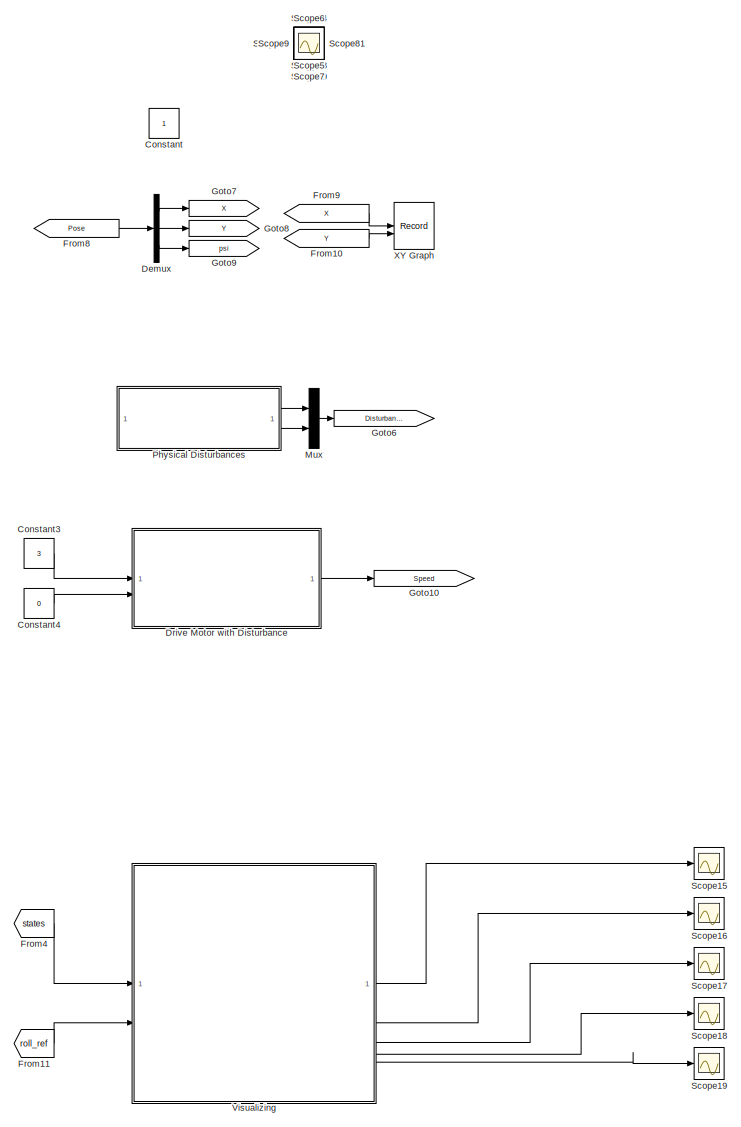
[diagram: root canvas - part 1/5, right side, full height]
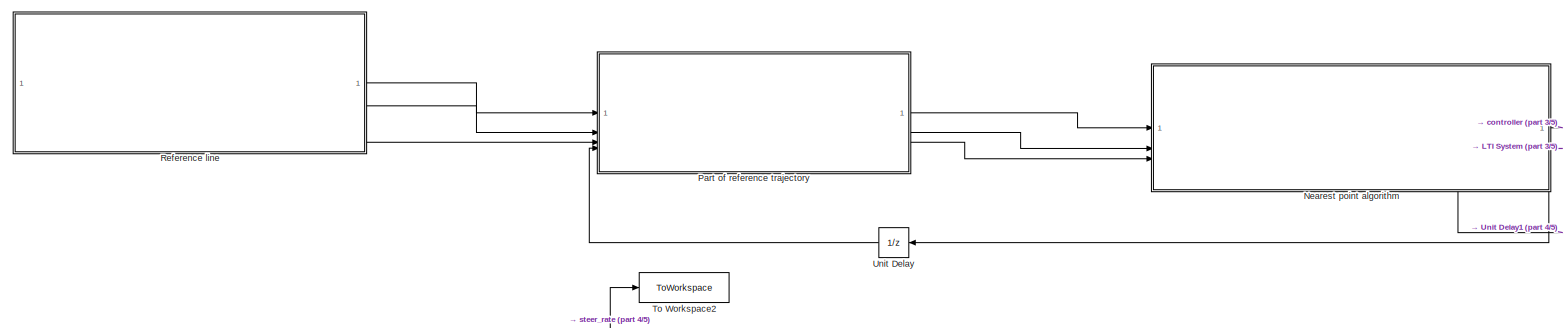
[diagram: root canvas - part 2/5, middle left region]
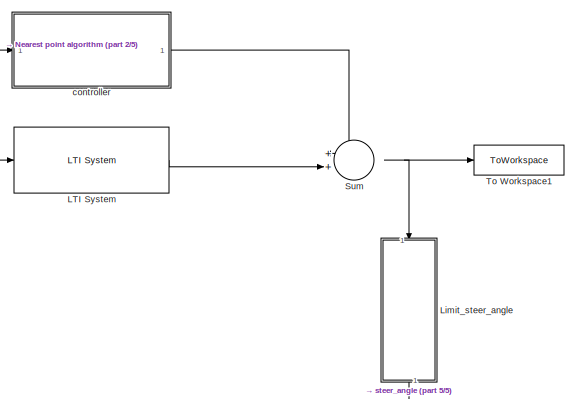
[diagram: root canvas - part 3/5, central region]
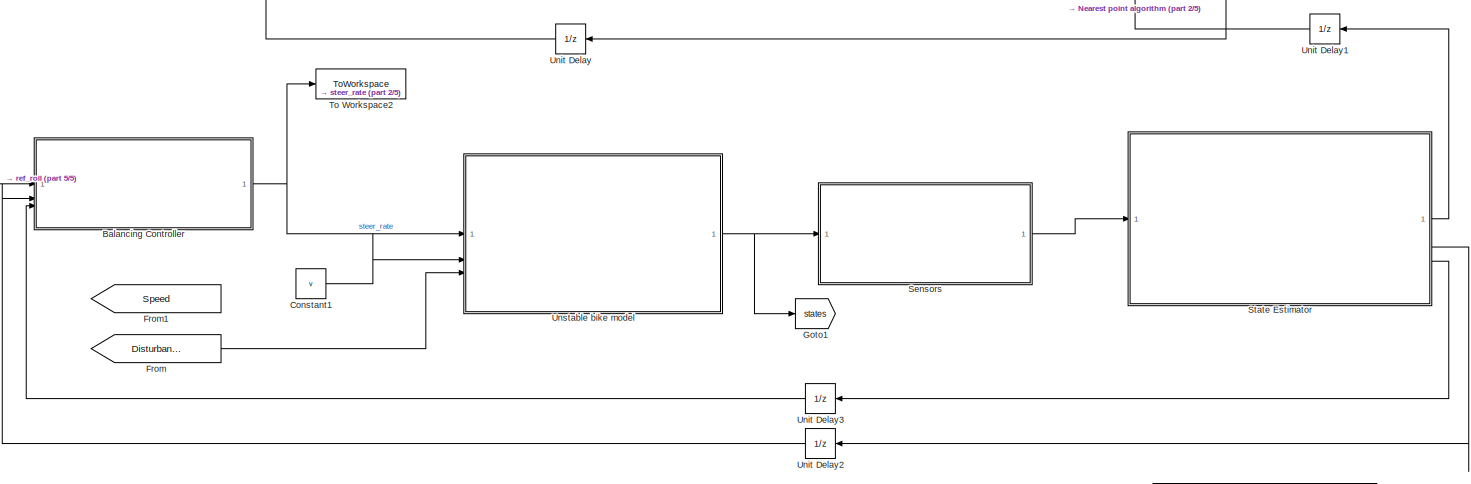
[diagram: root canvas - part 4/5, bottom center region]
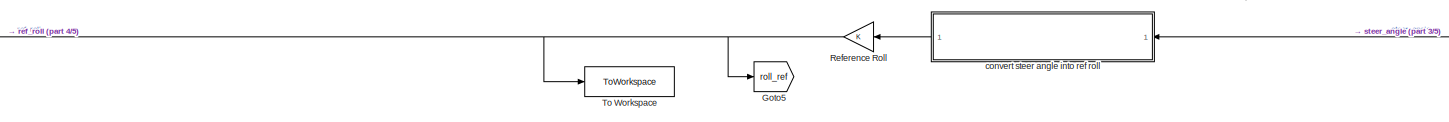
[diagram: root canvas - part 5/5, bottom center region]
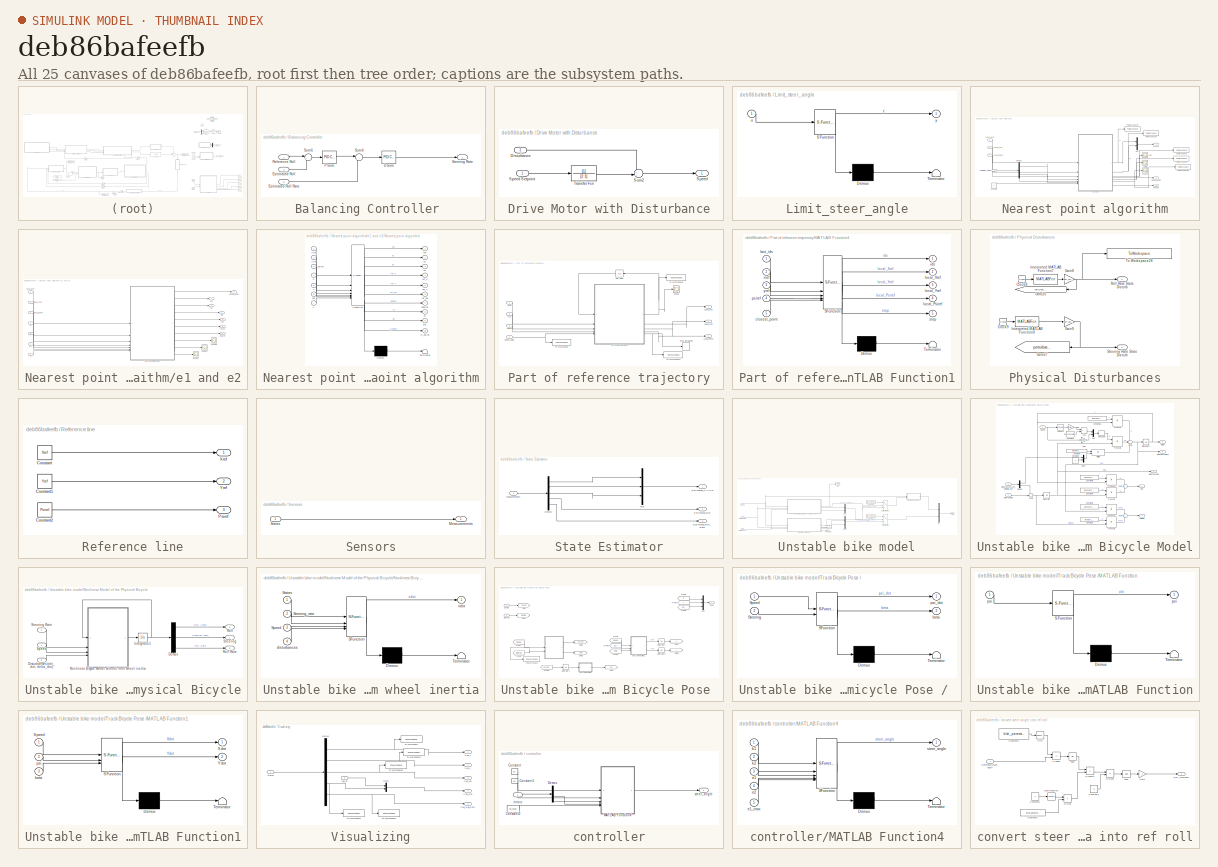
[diagram: thumbnail index - all 25 canvases of the model, root first then tree order]
MODEL slx_deb86bafeefb
KIND model
CONFIG AbsTol = auto
CONFIG EnableMultiTasking = off
CONFIG FixedStep = auto
CONFIG MaxStep = auto
CONFIG MinStep = auto
CONFIG RelTol = 1e-3
CONFIG SampleTimeConstraint = Unconstrained
CONFIG SolverName = VariableStepAuto
CONFIG StartTime = 0.0
CONFIG StopTime = sim_time-0.02
BLOCK [SubSystem] Balancing Controller 
  MinAlgLoopOccurrences = on
  SystemSampleTime = Ts
  TreatAsAtomicUnit = on
BLOCK [Reference] Balancing Controller /D term  REF=slpidlib/PID Controller
  SourceBlock = slpidlib/PID Controller
  SourceType = PID 1dof
BLOCK [Inport] Balancing Controller /Estimated Roll
  Port = 2
BLOCK [Inport] Balancing Controller /Estimated Roll Rate
  Port = 3
BLOCK [Reference] Balancing Controller /P term  REF=slpidlib/PID Controller
  SourceBlock = slpidlib/PID Controller
  SourceType = PID 1dof
BLOCK [Inport] Balancing Controller /Reference Roll
BLOCK [Outport] Balancing Controller /Steering Rate
BLOCK [Sum] Balancing Controller /Sum4
  Inputs = |+-
BLOCK [Sum] Balancing Controller /Sum6
  Inputs = |+-
BLOCK [Constant] Constant
  IOType = siggen
BLOCK [Constant] Constant1
  Value = v
BLOCK [Constant] Constant3
  Value = 3
BLOCK [Constant] Constant4
  Value = 0
BLOCK [Demux] Demux
  Commented = on
  Outputs = 3
BLOCK [SubSystem] Drive Motor with Disturbance
BLOCK [Inport] Drive Motor with Disturbance/Disturbance
  Port = 2
BLOCK [Outport] Drive Motor with Disturbance/Speed
BLOCK [Inport] Drive Motor with Disturbance/Speed Setpoint
BLOCK [Sum] Drive Motor with Disturbance/Sum2
  Inputs = ++|
BLOCK [TransferFcn] Drive Motor with Disturbance/Transfer Fcn
  Denominator = [2 1]
BLOCK [From] From
  GotoTag = Disturbances
BLOCK [From] From1
  Commented = on
  GotoTag = Speed
  TagVisibility = global
BLOCK [From] From10
  Commented = on
  GotoTag = Y
BLOCK [From] From11
  GotoTag = roll_ref
BLOCK [From] From4
  GotoTag = states
BLOCK [From] From8
  Commented = on
  GotoTag = Pose
BLOCK [From] From9
  Commented = on
  GotoTag = X
BLOCK [Goto] Goto1
  GotoTag = states
BLOCK [Goto] Goto10
  GotoTag = Speed
  TagVisibility = global
BLOCK [Goto] Goto5
  GotoTag = roll_ref
BLOCK [Goto] Goto6
  GotoTag = Disturbances
BLOCK [Goto] Goto7
  Commented = on
  GotoTag = X
BLOCK [Goto] Goto8
  Commented = on
  GotoTag = Y
BLOCK [Goto] Goto9
  Commented = on
  GotoTag = psi
BLOCK [Reference] LTI System  REF=cstblocks/LTI System
  SourceBlock = cstblocks/LTI System
  SourceType = LTI Block
BLOCK [SubSystem] Limit_steer_angle
  ErrorFcn = Stateflow.Translate.translate
  NameLocation = left
  PermitHierarchicalResolution = ExplicitOnly
  SFBlockType = MATLAB Function
  TreatAsAtomicUnit = on
BLOCK [Demux] Limit_steer_angle/ Demux 
  Outputs = 1
BLOCK [S-Function] Limit_steer_angle/ SFunction 
  EnableBusSupport = on
  FunctionName = sf_sfun
  PortCounts = [1 2]
  SFcnIsStateOwnerBlock = off
  SFunctionDeploymentMode = off
  Tag = Stateflow S-Function 8
BLOCK [Terminator] Limit_steer_angle/ Terminator 
BLOCK [Inport] Limit_steer_angle/u
BLOCK [Outport] Limit_steer_angle/y
BLOCK [Mux] Mux
  DisplayOption = bar
  Inputs = 2
BLOCK [SubSystem] Nearest point algorithm
  PortSchema = {"entries":[{"content":{"sides":[{"content":{"connectorIds":["In1","In2","In3"]},"type":"ConnectorPlacement.EquallySpacedRectSide","uuid":"cc846df4-97c1-4e38-a551-63d96742d514"},{"content":{"connectorIds":["Out1","Out2"],"side":"RIGHT"},"type":"ConnectorPlacement.EquallySpacedRectSide","uuid":"926eeee4-c51a-40d9-a9a1-df7a0c76cd55"},{"content":{"connectorIds":[],"side":"TOP"},"type":"ConnectorPlace...<+415ch>
BLOCK [Constant] Nearest point algorithm/Constant
  Value = v
BLOCK [Demux] Nearest point algorithm/Demux1
  Outputs = 3
BLOCK [Inport] Nearest point algorithm/Estimated_states
  Port = 4
BLOCK [Inport] Nearest point algorithm/Local_Psiref
  Port = 3
BLOCK [Inport] Nearest point algorithm/Local_Xref
BLOCK [Inport] Nearest point algorithm/Local_Yref
  Port = 2
BLOCK [Mux] Nearest point algorithm/Mux
  DisplayOption = bar
  Inputs = 2
BLOCK [ToWorkspace] Nearest point algorithm/To Workspace
  FixptAsFi = on
  MaxDataPoints = inf
  SampleTime = -1
  SaveFormat = Timeseries
  VariableName = refX
BLOCK [ToWorkspace] Nearest point algorithm/To Workspace1
  FixptAsFi = on
  MaxDataPoints = inf
  SampleTime = -1
  SaveFormat = Timeseries
  VariableName = refY
BLOCK [ToWorkspace] Nearest point algorithm/To Workspace2
  FixptAsFi = on
  MaxDataPoints = inf
  SampleTime = -1
  SaveFormat = Timeseries
  VariableName = refPsi
BLOCK [ToWorkspace] Nearest point algorithm/To Workspace3
  FixptAsFi = on
  MaxDataPoints = inf
  SampleTime = -1
  SaveFormat = Timeseries
  VariableName = error1
BLOCK [ToWorkspace] Nearest point algorithm/To Workspace4
  FixptAsFi = on
  MaxDataPoints = inf
  SampleTime = -1
  SaveFormat = Timeseries
  VariableName = error2
BLOCK [Outport] Nearest point algorithm/closest_point
  Port = 3
BLOCK [Outport] Nearest point algorithm/dPsiref
  Port = 2
BLOCK [SubSystem] Nearest point algorithm/e1 and e2
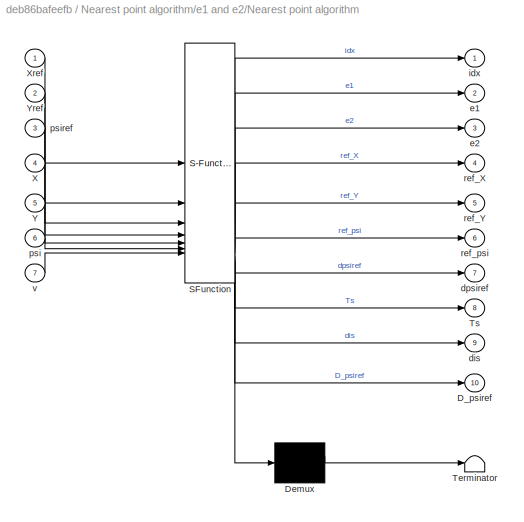
BLOCK [SubSystem] Nearest point algorithm/e1 and e2/Nearest point algorithm
  ErrorFcn = Stateflow.Translate.translate
  PermitHierarchicalResolution = ExplicitOnly
  SFBlockType = MATLAB Function
  TreatAsAtomicUnit = on
BLOCK [Demux] Nearest point algorithm/e1 and e2/Nearest point algorithm/ Demux 
  Outputs = 1
BLOCK [S-Function] Nearest point algorithm/e1 and e2/Nearest point algorithm/ SFunction 
  EnableBusSupport = on
  FunctionName = sf_sfun
  PortCounts = [7 11]
  SFcnIsStateOwnerBlock = off
  SFunctionDeploymentMode = off
  Tag = Stateflow S-Function 6
BLOCK [Terminator] Nearest point algorithm/e1 and e2/Nearest point algorithm/ Terminator 
BLOCK [Outport] Nearest point algorithm/e1 and e2/Nearest point algorithm/D_psiref
  Port = 10
BLOCK [Outport] Nearest point algorithm/e1 and e2/Nearest point algorithm/Ts
  Port = 8
BLOCK [Inport] Nearest point algorithm/e1 and e2/Nearest point algorithm/X
  Port = 4
BLOCK [Inport] Nearest point algorithm/e1 and e2/Nearest point algorithm/Xref
BLOCK [Inport] Nearest point algorithm/e1 and e2/Nearest point algorithm/Y
  Port = 5
BLOCK [Inport] Nearest point algorithm/e1 and e2/Nearest point algorithm/Yref
  Port = 2
BLOCK [Outport] Nearest point algorithm/e1 and e2/Nearest point algorithm/dis
  Port = 9
BLOCK [Outport] Nearest point algorithm/e1 and e2/Nearest point algorithm/dpsiref
  Port = 7
BLOCK [Outport] Nearest point algorithm/e1 and e2/Nearest point algorithm/e1
  Port = 2
BLOCK [Outport] Nearest point algorithm/e1 and e2/Nearest point algorithm/e2
  Port = 3
BLOCK [Outport] Nearest point algorithm/e1 and e2/Nearest point algorithm/idx
BLOCK [Inport] Nearest point algorithm/e1 and e2/Nearest point algorithm/psi
  Port = 6
BLOCK [Inport] Nearest point algorithm/e1 and e2/Nearest point algorithm/psiref
  Port = 3
BLOCK [Outport] Nearest point algorithm/e1 and e2/Nearest point algorithm/ref_X
  Port = 4
BLOCK [Outport] Nearest point algorithm/e1 and e2/Nearest point algorithm/ref_Y
  Port = 5
BLOCK [Outport] Nearest point algorithm/e1 and e2/Nearest point algorithm/ref_psi
  Port = 6
BLOCK [Inport] Nearest point algorithm/e1 and e2/Nearest point algorithm/v
  Port = 7
BLOCK [Scope] Nearest point algorithm/e1 and e2/Scope1
  Floating = off
  NumInputPorts = 1
  ScopeSpecificationString = Simulink.scopes.TimeScopeBlockCfg('CurrentConfiguration', extmgr.ConfigurationSet(extmgr.Configuration('Core','General UI',true),extmgr.Configuration('Core','Source UI',true),extmgr.Configuration('Sources','WiredSimulink',true,'DataLoggingVariableName','ScopeData5'),extmgr.Configuration('Visuals','Time Domain',true,'SerializedDisplays',{struct('MinYLimReal','4.49578243636452','MaxYLimReal','4.4957...<+1526ch>
BLOCK [Scope] Nearest point algorithm/e1 and e2/Scope2
  Floating = off
  NumInputPorts = 1
  ScopeSpecificationString = Simulink.scopes.TimeScopeBlockCfg('CurrentConfiguration', extmgr.ConfigurationSet(extmgr.Configuration('Core','General UI',true),extmgr.Configuration('Core','Source UI',true),extmgr.Configuration('Sources','WiredSimulink',true,'DataLoggingVariableName','ScopeData6'),extmgr.Configuration('Visuals','Time Domain',true,'SerializedDisplays',{struct('MinYLimReal','0.1499999999999984','MaxYLimReal','0.15...<+1543ch>
BLOCK [Scope] Nearest point algorithm/e1 and e2/Scope6
  Floating = off
  NumInputPorts = 1
  ScopeSpecificationString = Simulink.scopes.TimeScopeBlockCfg('CurrentConfiguration', extmgr.ConfigurationSet(extmgr.Configuration('Core','General UI',true),extmgr.Configuration('Core','Source UI',true),extmgr.Configuration('Sources','WiredSimulink',true,'DataLoggingVariableName','ScopeData4'),extmgr.Configuration('Visuals','Time Domain',true,'SerializedDisplays',{struct('MinYLimReal','1.49859414545484','MaxYLimReal','1.4985...<+1525ch>
BLOCK [Inport] Nearest point algorithm/e1 and e2/X
  Port = 4
BLOCK [Inport] Nearest point algorithm/e1 and e2/Y
  Port = 5
BLOCK [Outport] Nearest point algorithm/e1 and e2/closest_point
  Port = 6
BLOCK [Outport] Nearest point algorithm/e1 and e2/dpsiref
  Port = 7
BLOCK [Outport] Nearest point algorithm/e1 and e2/e1
BLOCK [Outport] Nearest point algorithm/e1 and e2/e2
  Port = 2
BLOCK [Inport] Nearest point algorithm/e1 and e2/local_Xref
BLOCK [Inport] Nearest point algorithm/e1 and e2/local_Yref
  Port = 2
BLOCK [Inport] Nearest point algorithm/e1 and e2/local_psiref
  Port = 3
BLOCK [Inport] Nearest point algorithm/e1 and e2/psi
  Port = 6
BLOCK [Outport] Nearest point algorithm/e1 and e2/refX
  Port = 3
BLOCK [Outport] Nearest point algorithm/e1 and e2/refY
  Port = 4
BLOCK [Outport] Nearest point algorithm/e1 and e2/ref_psi
  Port = 5
BLOCK [Inport] Nearest point algorithm/e1 and e2/v
  Port = 7
BLOCK [Outport] Nearest point algorithm/errors
BLOCK [Scope] Nearest point algorithm/refX
  Floating = off
  NumInputPorts = 1
  ScopeSpecificationString = Simulink.scopes.TimeScopeBlockCfg('CurrentConfiguration', extmgr.ConfigurationSet(extmgr.Configuration('Core','General UI',true),extmgr.Configuration('Core','Source UI',true),extmgr.Configuration('Sources','WiredSimulink',true,'DataLoggingVariableName','ScopeData1'),extmgr.Configuration('Visuals','Time Domain',true,'SerializedDisplays',{struct('MinYLimReal','-18.2525','MaxYLimReal','164.2725','YLa...<+1403ch>
BLOCK [Scope] Nearest point algorithm/refY
  Floating = off
  NumInputPorts = 1
  ScopeSpecificationString = Simulink.scopes.TimeScopeBlockCfg('CurrentConfiguration', extmgr.ConfigurationSet(extmgr.Configuration('Core','General UI',true),extmgr.Configuration('Core','Source UI',true),extmgr.Configuration('Sources','WiredSimulink',true,'DataLoggingVariableName','ScopeData2'),extmgr.Configuration('Visuals','Time Domain',true),extmgr.Configuration('Tools','Plot Navigation',true),extmgr.Configuration('Tools',...<+40ch>
BLOCK [Scope] Nearest point algorithm/ref_psi
  Floating = off
  NumInputPorts = 1
  ScopeSpecificationString = Simulink.scopes.TimeScopeBlockCfg('CurrentConfiguration', extmgr.ConfigurationSet(extmgr.Configuration('Core','General UI',true),extmgr.Configuration('Core','Source UI',true),extmgr.Configuration('Sources','WiredSimulink',true,'DataLoggingVariableName','ScopeData3'),extmgr.Configuration('Visuals','Time Domain',true,'SerializedDisplays',{struct('MinYLimReal','-3.89452','MaxYLimReal','3.80863','YLab...<+1405ch>
BLOCK [SubSystem] Part of reference trajectory
BLOCK [Outport] Part of reference trajectory/Local_Psiref
  Port = 3
BLOCK [Outport] Part of reference trajectory/Local_Xref
BLOCK [Outport] Part of reference trajectory/Local_Yref
  Port = 2
BLOCK [SubSystem] Part of reference trajectory/MATLAB Function1
  ErrorFcn = Stateflow.Translate.translate
  PermitHierarchicalResolution = ExplicitOnly
  SFBlockType = MATLAB Function
  TreatAsAtomicUnit = on
BLOCK [Demux] Part of reference trajectory/MATLAB Function1/ Demux 
  Outputs = 1
BLOCK [S-Function] Part of reference trajectory/MATLAB Function1/ SFunction 
  EnableBusSupport = on
  FunctionName = sf_sfun
  Parameters = Th,Ts,v
  PortCounts = [5 6]
  SFcnIsStateOwnerBlock = off
  SFunctionDeploymentMode = off
  Tag = Stateflow S-Function 7
BLOCK [Terminator] Part of reference trajectory/MATLAB Function1/ Terminator 
BLOCK [Inport] Part of reference trajectory/MATLAB Function1/closest_point
  Port = 5
BLOCK [Outport] Part of reference trajectory/MATLAB Function1/ids
BLOCK [Inport] Part of reference trajectory/MATLAB Function1/last_ids
BLOCK [Outport] Part of reference trajectory/MATLAB Function1/local_Psiref
  Port = 4
BLOCK [Outport] Part of reference trajectory/MATLAB Function1/local_Xref
  Port = 2
BLOCK [Outport] Part of reference trajectory/MATLAB Function1/local_Yref
  Port = 3
BLOCK [Inport] Part of reference trajectory/MATLAB Function1/psiref
  Port = 4
BLOCK [Outport] Part of reference trajectory/MATLAB Function1/stop
  Port = 5
BLOCK [Inport] Part of reference trajectory/MATLAB Function1/xref
  Port = 2
BLOCK [Inport] Part of reference trajectory/MATLAB Function1/yref
  Port = 3
BLOCK [Inport] Part of reference trajectory/Psiref
  Port = 3
BLOCK [Scope] Part of reference trajectory/Scope
  Floating = off
  NumInputPorts = 1
  ScopeSpecificationString = Simulink.scopes.TimeScopeBlockCfg('CurrentConfiguration', extmgr.ConfigurationSet(extmgr.Configuration('Core','General UI',true),extmgr.Configuration('Core','Source UI',true),extmgr.Configuration('Sources','WiredSimulink',true,'DataLoggingVariableName','ScopeData1'),extmgr.Configuration('Visuals','Time Domain',true,'SerializedDisplays',{struct('MinYLimReal','-11.75','MaxYLimReal','115.75','YLabelR...<+1423ch>
BLOCK [Stop] Part of reference trajectory/Stop Simulation
BLOCK [ToWorkspace] Part of reference trajectory/To Workspace
  FixptAsFi = on
  MaxDataPoints = inf
  SampleTime = -1
  SaveFormat = Timeseries
  VariableName = closest_point
BLOCK [ToWorkspace] Part of reference trajectory/To Workspace1
  FixptAsFi = on
  MaxDataPoints = inf
  SampleTime = -1
  SaveFormat = Timeseries
  VariableName = ids
BLOCK [ToWorkspace] Part of reference trajectory/To Workspace2
  FixptAsFi = on
  MaxDataPoints = inf
  SampleTime = -1
  SaveFormat = Timeseries
  VariableName = stop
BLOCK [UnitDelay] Part of reference trajectory/Unit Delay
  HasFrameUpgradeWarning = on
  InitialCondition = 1
  SampleTime = Ts
BLOCK [Inport] Part of reference trajectory/Xref
BLOCK [Inport] Part of reference trajectory/Yref
  Port = 2
BLOCK [Inport] Part of reference trajectory/closes_point
  Port = 4
BLOCK [SubSystem] Physical Disturbances
BLOCK [Clock] Physical Disturbances/Clock8
  Decimation = 1
BLOCK [Clock] Physical Disturbances/Clock9
  Decimation = 1
BLOCK [Gain] Physical Disturbances/Gain8
  Gain = pert_phidot_state
BLOCK [Gain] Physical Disturbances/Gain9
  Gain = pert_deltadot_state
BLOCK [Goto] Physical Disturbances/Goto26
  Commented = on
  GotoTag = perturbation_phidot_state
  NameLocation = top
  TagVisibility = global
BLOCK [Goto] Physical Disturbances/Goto27
  Commented = on
  GotoTag = perturbation_deltadot_state
  NameLocation = top
  TagVisibility = global
BLOCK [MATLABFcn] Physical Disturbances/Interpreted MATLAB Function7
  MATLABFcn = double(pert_phidot_state_fun(u))
BLOCK [MATLABFcn] Physical Disturbances/Interpreted MATLAB Function8
  MATLABFcn = double(pert_deltadot_state_fun(u))
BLOCK [Outport] Physical Disturbances/Roll Rate State Disturb
BLOCK [Outport] Physical Disturbances/Steering Rate State Disturb
  Port = 2
BLOCK [ToWorkspace] Physical Disturbances/To Workspace28
  FixptAsFi = on
  MaxDataPoints = inf
  SampleTime = -1
  SaveFormat = Timeseries
  VariableName = Disturbance_RollRate
BLOCK [Gain] Reference Roll
  NameLocation = top
BLOCK [SubSystem] Reference line
BLOCK [Constant] Reference line/Constant
  Value = Xref
BLOCK [Constant] Reference line/Constant1
  Value = Yref
BLOCK [Constant] Reference line/Constant2
  Value = Psiref
BLOCK [Outport] Reference line/Psiref
  Port = 3
BLOCK [Outport] Reference line/Xref
BLOCK [Outport] Reference line/Yref
  Port = 2
BLOCK [Scope] Scope
  Floating = off
  IOType = viewer
  NumInputPorts = 1
  ScopeSpecificationString = Simulink.scopes.TimeScopeBlockCfg('CurrentConfiguration', extmgr.ConfigurationSet(extmgr.Configuration('Core','General UI',true),extmgr.Configuration('Core','Source UI',true),extmgr.Configuration('Sources','WiredSimulink',true),extmgr.Configuration('Visuals','Time Domain',true,'SerializedDisplays',{struct('MinYLimReal','-1.00000','MaxYLimReal','1.00000','YLabelReal','','MinYLimMag','0.00000','MaxY...<+1320ch>
BLOCK [Scope] Scope1
  Floating = off
  IOType = viewer
  NumInputPorts = 1
  ScopeSpecificationString = Simulink.scopes.TimeScopeBlockCfg('CurrentConfiguration', extmgr.ConfigurationSet(extmgr.Configuration('Core','General UI',true),extmgr.Configuration('Core','Source UI',true),extmgr.Configuration('Sources','WiredSimulink',true,'DataLoggingVariableName','ScopeData1'),extmgr.Configuration('Visuals','Time Domain',true,'SerializedDisplays',{struct('MinYLimReal','-1.00000','MaxYLimReal','1.00000','YLab...<+1359ch>
BLOCK [Scope] Scope10
  Floating = off
  IOType = viewer
  NumInputPorts = 1
  ScopeSpecificationString = Simulink.scopes.TimeScopeBlockCfg('CurrentConfiguration', extmgr.ConfigurationSet(extmgr.Configuration('Core','General UI',true),extmgr.Configuration('Core','Source UI',true),extmgr.Configuration('Sources','WiredSimulink',true,'DataLoggingVariableName','ScopeData10'),extmgr.Configuration('Visuals','Time Domain',true,'SerializedDisplays',{struct('MinYLimReal','-1.00000','MaxYLimReal','1.00000','YLa...<+1360ch>
BLOCK [Scope] Scope11
  Floating = off
  IOType = viewer
  NumInputPorts = 1
  ScopeSpecificationString = Simulink.scopes.TimeScopeBlockCfg('CurrentConfiguration', extmgr.ConfigurationSet(extmgr.Configuration('Core','General UI',true),extmgr.Configuration('Core','Source UI',true),extmgr.Configuration('Sources','WiredSimulink',true,'DataLoggingVariableName','ScopeData11'),extmgr.Configuration('Visuals','Time Domain',true,'SerializedDisplays',{struct('MinYLimReal','-1.00000','MaxYLimReal','1.00000','YLa...<+1360ch>
BLOCK [Scope] Scope12
  Floating = off
  IOType = viewer
  NumInputPorts = 1
  ScopeSpecificationString = Simulink.scopes.TimeScopeBlockCfg('CurrentConfiguration', extmgr.ConfigurationSet(extmgr.Configuration('Core','General UI',true),extmgr.Configuration('Core','Source UI',true),extmgr.Configuration('Sources','WiredSimulink',true,'DataLoggingVariableName','ScopeData12'),extmgr.Configuration('Visuals','Time Domain',true,'SerializedDisplays',{struct('MinYLimReal','-1.00000','MaxYLimReal','1.00000','YLa...<+1383ch>
BLOCK [Scope] Scope13
  Floating = off
  IOType = viewer
  NumInputPorts = 1
  ScopeSpecificationString = Simulink.scopes.TimeScopeBlockCfg('CurrentConfiguration', extmgr.ConfigurationSet(extmgr.Configuration('Core','General UI',true),extmgr.Configuration('Core','Source UI',true),extmgr.Configuration('Sources','WiredSimulink',true,'DataLoggingVariableName','ScopeData13'),extmgr.Configuration('Visuals','Time Domain',true,'SerializedDisplays',{struct('MinYLimReal','-1.00000','MaxYLimReal','1.00000','YLa...<+1383ch>
BLOCK [Scope] Scope14
  Floating = off
  IOType = viewer
  NumInputPorts = 1
  ScopeSpecificationString = Simulink.scopes.TimeScopeBlockCfg('CurrentConfiguration', extmgr.ConfigurationSet(extmgr.Configuration('Core','General UI',true),extmgr.Configuration('Core','Source UI',true),extmgr.Configuration('Sources','WiredSimulink',true,'DataLoggingVariableName','ScopeData14'),extmgr.Configuration('Visuals','Time Domain',true,'SerializedDisplays',{struct('MinYLimReal','-0.12803','MaxYLimReal','0.11154','YLa...<+1370ch>
BLOCK [Scope] Scope15
  Floating = off
  NumInputPorts = 1
  ScopeSpecificationString = Simulink.scopes.TimeScopeBlockCfg('CurrentConfiguration', extmgr.ConfigurationSet(extmgr.Configuration('Core','General UI',true),extmgr.Configuration('Core','Source UI',true),extmgr.Configuration('Sources','WiredSimulink',true,'DataLoggingVariableName','ScopeData1'),extmgr.Configuration('Visuals','Time Domain',true,'SerializedDisplays',{struct('MinYLimReal','46.08366','MaxYLimReal','105.99275','YL...<+1382ch>
BLOCK [Scope] Scope16
  Floating = off
  NumInputPorts = 1
  ScopeSpecificationString = Simulink.scopes.TimeScopeBlockCfg('CurrentConfiguration', extmgr.ConfigurationSet(extmgr.Configuration('Core','General UI',true),extmgr.Configuration('Core','Source UI',true),extmgr.Configuration('Sources','WiredSimulink',true,'DataLoggingVariableName','ScopeData2'),extmgr.Configuration('Visuals','Time Domain',true,'SerializedDisplays',{struct('MinYLimReal','-6.27668','MaxYLimReal','56.49014','YLa...<+1376ch>
BLOCK [Scope] Scope17
  Floating = off
  NumInputPorts = 1
  ScopeSpecificationString = Simulink.scopes.TimeScopeBlockCfg('CurrentConfiguration', extmgr.ConfigurationSet(extmgr.Configuration('Core','General UI',true),extmgr.Configuration('Core','Source UI',true),extmgr.Configuration('Sources','WiredSimulink',true,'DataLoggingVariableName','ScopeData3'),extmgr.Configuration('Visuals','Time Domain',true,'SerializedDisplays',{struct('MinYLimReal','-0.8978','MaxYLimReal','2.27409','YLabe...<+1370ch>
BLOCK [Scope] Scope18
  Floating = off
  NumInputPorts = 1
  ScopeSpecificationString = Simulink.scopes.TimeScopeBlockCfg('CurrentConfiguration', extmgr.ConfigurationSet(extmgr.Configuration('Core','General UI',true),extmgr.Configuration('Core','Source UI',true),extmgr.Configuration('Sources','WiredSimulink',true,'DataLoggingVariableName','ScopeData4'),extmgr.Configuration('Visuals','Time Domain',true,'SerializedDisplays',{struct('MinYLimReal','-0.81392','MaxYLimReal','0.81392','YLab...<+1390ch>
BLOCK [Scope] Scope19
  Floating = off
  NumInputPorts = 1
  ScopeSpecificationString = Simulink.scopes.TimeScopeBlockCfg('CurrentConfiguration', extmgr.ConfigurationSet(extmgr.Configuration('Core','General UI',true),extmgr.Configuration('Core','Source UI',true),extmgr.Configuration('Sources','WiredSimulink',true,'DataLoggingVariableName','ScopeData5'),extmgr.Configuration('Visuals','Time Domain',true,'SerializedDisplays',{struct('MinYLimReal','-0.03035','MaxYLimReal','0.04198','YLab...<+1372ch>
BLOCK [Scope] Scope2
  Floating = off
  IOType = viewer
  NumInputPorts = 1
  ScopeSpecificationString = Simulink.scopes.TimeScopeBlockCfg('CurrentConfiguration', extmgr.ConfigurationSet(extmgr.Configuration('Core','General UI',true),extmgr.Configuration('Core','Source UI',true),extmgr.Configuration('Sources','WiredSimulink',true,'DataLoggingVariableName','ScopeData2'),extmgr.Configuration('Visuals','Time Domain',true,'SerializedDisplays',{struct('MinYLimReal','-1.00000','MaxYLimReal','1.00000','YLab...<+1359ch>
BLOCK [Scope] Scope3
  Floating = off
  IOType = viewer
  NumInputPorts = 1
  ScopeSpecificationString = Simulink.scopes.TimeScopeBlockCfg('CurrentConfiguration', extmgr.ConfigurationSet(extmgr.Configuration('Core','General UI',true),extmgr.Configuration('Core','Source UI',true),extmgr.Configuration('Sources','WiredSimulink',true,'DataLoggingVariableName','ScopeData3'),extmgr.Configuration('Visuals','Time Domain',true,'SerializedDisplays',{struct('MinYLimReal','-1.00000','MaxYLimReal','1.00000','YLab...<+1359ch>
BLOCK [Scope] Scope4
  Floating = off
  IOType = viewer
  NumInputPorts = 1
  ScopeSpecificationString = Simulink.scopes.TimeScopeBlockCfg('CurrentConfiguration', extmgr.ConfigurationSet(extmgr.Configuration('Core','General UI',true),extmgr.Configuration('Core','Source UI',true),extmgr.Configuration('Sources','WiredSimulink',true,'DataLoggingVariableName','ScopeData4'),extmgr.Configuration('Visuals','Time Domain',true,'SerializedDisplays',{struct('MinYLimReal','-1.00000','MaxYLimReal','1.00000','YLab...<+1359ch>
BLOCK [Scope] Scope5
  Floating = off
  IOType = viewer
  NumInputPorts = 1
  ScopeSpecificationString = Simulink.scopes.TimeScopeBlockCfg('CurrentConfiguration', extmgr.ConfigurationSet(extmgr.Configuration('Core','General UI',true),extmgr.Configuration('Core','Source UI',true),extmgr.Configuration('Sources','WiredSimulink',true,'DataLoggingVariableName','ScopeData5'),extmgr.Configuration('Visuals','Time Domain',true,'SerializedDisplays',{struct('MinYLimReal','-1.00000','MaxYLimReal','1.00000','YLab...<+1359ch>
BLOCK [Scope] Scope6
  Floating = off
  IOType = viewer
  NumInputPorts = 1
  ScopeSpecificationString = Simulink.scopes.TimeScopeBlockCfg('CurrentConfiguration', extmgr.ConfigurationSet(extmgr.Configuration('Core','General UI',true),extmgr.Configuration('Core','Source UI',true),extmgr.Configuration('Sources','WiredSimulink',true,'DataLoggingVariableName','ScopeData6'),extmgr.Configuration('Visuals','Time Domain',true,'SerializedDisplays',{struct('MinYLimReal','-1.00000','MaxYLimReal','1.00000','YLab...<+1359ch>
BLOCK [Scope] Scope7
  Floating = off
  IOType = viewer
  NumInputPorts = 1
  ScopeSpecificationString = Simulink.scopes.TimeScopeBlockCfg('CurrentConfiguration', extmgr.ConfigurationSet(extmgr.Configuration('Core','General UI',true),extmgr.Configuration('Core','Source UI',true),extmgr.Configuration('Sources','WiredSimulink',true,'DataLoggingVariableName','ScopeData7'),extmgr.Configuration('Visuals','Time Domain',true,'SerializedDisplays',{struct('MinYLimReal','-1.00000','MaxYLimReal','1.00000','YLab...<+1359ch>
BLOCK [Scope] Scope8
  Floating = off
  IOType = viewer
  NumInputPorts = 1
  ScopeSpecificationString = Simulink.scopes.TimeScopeBlockCfg('CurrentConfiguration', extmgr.ConfigurationSet(extmgr.Configuration('Core','General UI',true),extmgr.Configuration('Core','Source UI',true),extmgr.Configuration('Sources','WiredSimulink',true,'DataLoggingVariableName','ScopeData8'),extmgr.Configuration('Visuals','Time Domain',true,'SerializedDisplays',{struct('MinYLimReal','-3.00505','MaxYLimReal','27.04548','YLa...<+1458ch>
BLOCK [Scope] Scope9
  Floating = off
  IOType = viewer
  NumInputPorts = 1
  ScopeSpecificationString = Simulink.scopes.TimeScopeBlockCfg('CurrentConfiguration', extmgr.ConfigurationSet(extmgr.Configuration('Core','General UI',true),extmgr.Configuration('Core','Source UI',true),extmgr.Configuration('Sources','WiredSimulink',true,'DataLoggingVariableName','ScopeData9'),extmgr.Configuration('Visuals','Time Domain',true,'SerializedDisplays',{struct('MinYLimReal','-3.00505','MaxYLimReal','27.04548','YLa...<+1363ch>
BLOCK [SubSystem] Sensors
BLOCK [Outport] Sensors/Measurements
BLOCK [Inport] Sensors/States
BLOCK [SubSystem] State Estimator
BLOCK [Demux] State Estimator/Demux
  Outputs = 5
BLOCK [Outport] State Estimator/Estimated_Roll
  Port = 2
  VectorParamsAs1DForOutWhenUnconnected = off
BLOCK [Outport] State Estimator/Estimated_Roll_Rate
  Port = 3
  VectorParamsAs1DForOutWhenUnconnected = off
BLOCK [Outport] State Estimator/Estimated_X//Y//Psi
  VectorParamsAs1DForOutWhenUnconnected = off
BLOCK [Mux] State Estimator/Mux
  DisplayOption = bar
  Inputs = 3
BLOCK [Inport] State Estimator/measurements
BLOCK [Sum] Sum
  Inputs = ++|
BLOCK [ToWorkspace] To Workspace
  FixptAsFi = on
  MaxDataPoints = inf
  SampleTime = -1
  SaveFormat = Timeseries
  VariableName = refRoll
BLOCK [ToWorkspace] To Workspace1
  FixptAsFi = on
  MaxDataPoints = inf
  SampleTime = -1
  SaveFormat = Timeseries
  VariableName = refSteer_angle
BLOCK [ToWorkspace] To Workspace2
  FixptAsFi = on
  MaxDataPoints = inf
  SampleTime = -1
  SaveFormat = Timeseries
  VariableName = steer_rate
BLOCK [UnitDelay] Unit Delay
  HasFrameUpgradeWarning = on
  InitialCondition = 1
  SampleTime = Ts
BLOCK [UnitDelay] Unit Delay1
  HasFrameUpgradeWarning = on
  InitialCondition = [initial_state.x,initial_state.y,initial_state.heading]
  SampleTime = Ts
BLOCK [UnitDelay] Unit Delay2
  HasFrameUpgradeWarning = on
  InitialCondition = initial_state.roll
  SampleTime = Ts
BLOCK [UnitDelay] Unit Delay3
  HasFrameUpgradeWarning = on
  InitialCondition = initial_state.roll_rate
  SampleTime = Ts
BLOCK [SubSystem] Unstable bike model
BLOCK [Constant] Unstable bike model/Constant
  Value = bike_model
BLOCK [Constant] Unstable bike model/Constant1
  Value = bike_model
BLOCK [Inport] Unstable bike model/Disturbance
  Port = 3
BLOCK [Goto] Unstable bike model/Goto
  GotoTag = delta
  TagVisibility = global
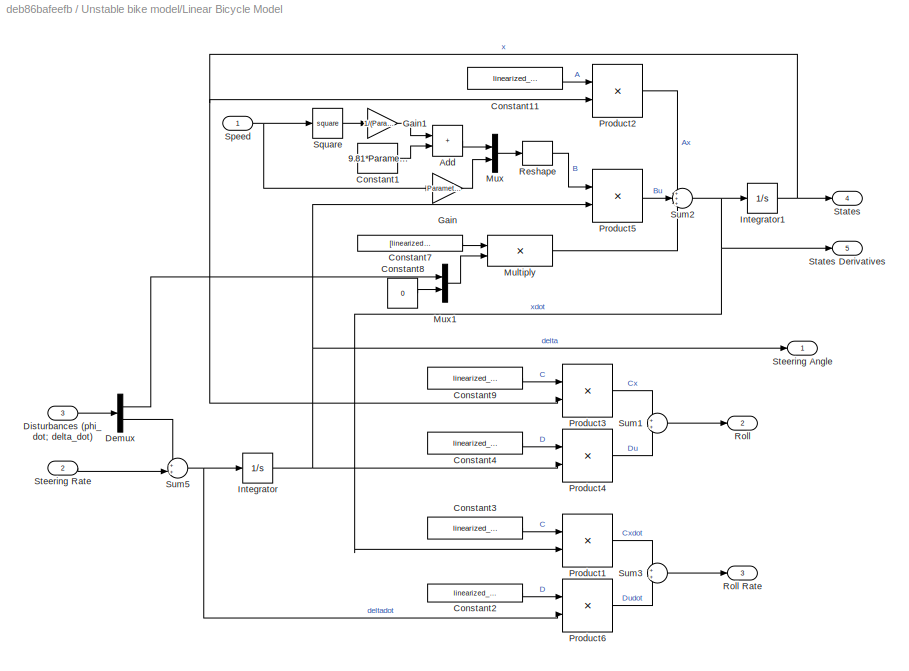
BLOCK [SubSystem] Unstable bike model/Linear Bicycle Model
  Commented = on
BLOCK [Sum] Unstable bike model/Linear Bicycle Model/Add
  IconShape = rectangular
BLOCK [Constant] Unstable bike model/Linear Bicycle Model/Constant1
  Value = 9.81*Parameters.inertia_front/(Parameters.h^3*Parameters.m)
BLOCK [Constant] Unstable bike model/Linear Bicycle Model/Constant11
  Value = linearized_sys.A
  VectorParams1D = off
BLOCK [Constant] Unstable bike model/Linear Bicycle Model/Constant2
  Value = linearized_sys.D
  VectorParams1D = off
BLOCK [Constant] Unstable bike model/Linear Bicycle Model/Constant3
  Value = linearized_sys.C
  VectorParams1D = off
BLOCK [Constant] Unstable bike model/Linear Bicycle Model/Constant4
  Value = linearized_sys.D
  VectorParams1D = off
BLOCK [Constant] Unstable bike model/Linear Bicycle Model/Constant7
  Value = [linearized_sys.C ; linearized_sys.C*linearized_sys.A]\eye(size(linearized_sys.A))
  VectorParams1D = off
BLOCK [Constant] Unstable bike model/Linear Bicycle Model/Constant8
  Value = 0
BLOCK [Constant] Unstable bike model/Linear Bicycle Model/Constant9
  Value = linearized_sys.C
  VectorParams1D = off
BLOCK [Demux] Unstable bike model/Linear Bicycle Model/Demux
  Outputs = 2
BLOCK [Inport] Unstable bike model/Linear Bicycle Model/Disturbances (phi_dot; delta_dot)
  Port = 3
BLOCK [Gain] Unstable bike model/Linear Bicycle Model/Gain
  Gain = Parameters.a/(Parameters.b*Parameters.h)
BLOCK [Gain] Unstable bike model/Linear Bicycle Model/Gain1
  Gain = 1/(Parameters.b*Parameters.h)
BLOCK [Integrator] Unstable bike model/Linear Bicycle Model/Integrator
  InitialCondition = Initial_State.steering
BLOCK [Integrator] Unstable bike model/Linear Bicycle Model/Integrator1
  InitialCondition = [linearized_sys.C ; linearized_sys.C*linearized_sys.A]\[Initial_State.roll ; Initial_State.roll_rate]
BLOCK [Product] Unstable bike model/Linear Bicycle Model/Multiply
  Multiplication = Matrix(*)
BLOCK [Mux] Unstable bike model/Linear Bicycle Model/Mux
  DisplayOption = bar
  Inputs = 2
BLOCK [Mux] Unstable bike model/Linear Bicycle Model/Mux1
  DisplayOption = bar
  Inputs = 2
BLOCK [Product] Unstable bike model/Linear Bicycle Model/Product1
  Multiplication = Matrix(*)
  NameLocation = top
  SCDEnableBlockLinearizationSpecification = on
BLOCK [Product] Unstable bike model/Linear Bicycle Model/Product2
  Multiplication = Matrix(*)
  NameLocation = top
  SCDEnableBlockLinearizationSpecification = on
BLOCK [Product] Unstable bike model/Linear Bicycle Model/Product3
  Multiplication = Matrix(*)
  NameLocation = top
  SCDEnableBlockLinearizationSpecification = on
BLOCK [Product] Unstable bike model/Linear Bicycle Model/Product4
  Multiplication = Matrix(*)
  NameLocation = top
  SCDEnableBlockLinearizationSpecification = on
BLOCK [Product] Unstable bike model/Linear Bicycle Model/Product5
  Multiplication = Matrix(*)
  NameLocation = top
  SCDEnableBlockLinearizationSpecification = on
BLOCK [Product] Unstable bike model/Linear Bicycle Model/Product6
  Multiplication = Matrix(*)
  NameLocation = top
  SCDEnableBlockLinearizationSpecification = on
BLOCK [Reshape] Unstable bike model/Linear Bicycle Model/Reshape
  OutputDimensionality = Customize
  OutputDimensions = [size(linearized_sys.B,1),size(linearized_sys.B,2)]
BLOCK [Outport] Unstable bike model/Linear Bicycle Model/Roll
  Port = 2
  VectorParamsAs1DForOutWhenUnconnected = off
BLOCK [Outport] Unstable bike model/Linear Bicycle Model/Roll Rate
  Port = 3
  VectorParamsAs1DForOutWhenUnconnected = off
BLOCK [Inport] Unstable bike model/Linear Bicycle Model/Speed
BLOCK [Math] Unstable bike model/Linear Bicycle Model/Square
  Operator = square
  SignedPower = on
BLOCK [Outport] Unstable bike model/Linear Bicycle Model/States
  Port = 4
  VectorParamsAs1DForOutWhenUnconnected = off
BLOCK [Outport] Unstable bike model/Linear Bicycle Model/States Derivatives
  Port = 5
  VectorParamsAs1DForOutWhenUnconnected = off
BLOCK [Outport] Unstable bike model/Linear Bicycle Model/Steering Angle
  VectorParamsAs1DForOutWhenUnconnected = off
BLOCK [Inport] Unstable bike model/Linear Bicycle Model/Steering Rate
  Port = 2
BLOCK [Sum] Unstable bike model/Linear Bicycle Model/Sum1
BLOCK [Sum] Unstable bike model/Linear Bicycle Model/Sum2
  Inputs = +++
BLOCK [Sum] Unstable bike model/Linear Bicycle Model/Sum3
BLOCK [Sum] Unstable bike model/Linear Bicycle Model/Sum5
  Inputs = ++|
BLOCK [MultiPortSwitch] Unstable bike model/Multiport Switch
  InputSameDT = off
  Inputs = 2
  SaturateOnIntegerOverflow = off
BLOCK [MultiPortSwitch] Unstable bike model/Multiport Switch1
  InputSameDT = off
  Inputs = 2
  SaturateOnIntegerOverflow = off
BLOCK [Mux] Unstable bike model/Mux
  DisplayOption = bar
  Inputs = 2
BLOCK [Mux] Unstable bike model/Mux1
  DisplayOption = bar
  Inputs = 2
BLOCK [Mux] Unstable bike model/Mux2
  DisplayOption = bar
  Inputs = 2
BLOCK [SubSystem] Unstable bike model/Nonlinear Model of the Physical Bicycle
BLOCK [Demux] Unstable bike model/Nonlinear Model of the Physical Bicycle/Demux
  Outputs = 3
BLOCK [Inport] Unstable bike model/Nonlinear Model of the Physical Bicycle/Disturbances (phi_dot; delta_dot)
  Port = 3
BLOCK [Integrator] Unstable bike model/Nonlinear Model of the Physical Bicycle/Integrator1
  InitialCondition = [Initial_State.roll ; Initial_State.steering ; Initial_State.roll_rate]
BLOCK [SubSystem] Unstable bike model/Nonlinear Model of the Physical Bicycle/Nonlinear Bicycle Model without front wheel inertia
  ErrorFcn = Stateflow.Translate.translate
  PermitHierarchicalResolution = ExplicitOnly
  SFBlockType = MATLAB Function
  TreatAsAtomicUnit = on
BLOCK [Demux] Unstable bike model/Nonlinear Model of the Physical Bicycle/Nonlinear Bicycle Model without front wheel inertia/ Demux 
  Outputs = 1
BLOCK [S-Function] Unstable bike model/Nonlinear Model of the Physical Bicycle/Nonlinear Bicycle Model without front wheel inertia/ SFunction 
  EnableBusSupport = on
  FunctionName = sf_sfun
  Parameters = Parameters
  PortCounts = [4 2]
  SFcnIsStateOwnerBlock = off
  SFunctionDeploymentMode = off
  Tag = Stateflow S-Function 4
BLOCK [Terminator] Unstable bike model/Nonlinear Model of the Physical Bicycle/Nonlinear Bicycle Model without front wheel inertia/ Terminator 
BLOCK [Inport] Unstable bike model/Nonlinear Model of the Physical Bicycle/Nonlinear Bicycle Model without front wheel inertia/Speed
  Port = 3
BLOCK [Inport] Unstable bike model/Nonlinear Model of the Physical Bicycle/Nonlinear Bicycle Model without front wheel inertia/States
BLOCK [Inport] Unstable bike model/Nonlinear Model of the Physical Bicycle/Nonlinear Bicycle Model without front wheel inertia/Steering_rate
  Port = 2
BLOCK [Inport] Unstable bike model/Nonlinear Model of the Physical Bicycle/Nonlinear Bicycle Model without front wheel inertia/disturbances
  Port = 4
BLOCK [Outport] Unstable bike model/Nonlinear Model of the Physical Bicycle/Nonlinear Bicycle Model without front wheel inertia/xdot
BLOCK [Outport] Unstable bike model/Nonlinear Model of the Physical Bicycle/Roll
  Port = 2
  VectorParamsAs1DForOutWhenUnconnected = off
BLOCK [Outport] Unstable bike model/Nonlinear Model of the Physical Bicycle/Roll Rate
  Port = 3
  VectorParamsAs1DForOutWhenUnconnected = off
BLOCK [Inport] Unstable bike model/Nonlinear Model of the Physical Bicycle/Speed
BLOCK [Outport] Unstable bike model/Nonlinear Model of the Physical Bicycle/Steering
  VectorParamsAs1DForOutWhenUnconnected = off
BLOCK [Inport] Unstable bike model/Nonlinear Model of the Physical Bicycle/Steering Rate
  Port = 2
BLOCK [Inport] Unstable bike model/Speed
  Port = 2
BLOCK [Outport] Unstable bike model/States
BLOCK [Inport] Unstable bike model/Steering Rate
BLOCK [Terminator] Unstable bike model/Terminator
BLOCK [Terminator] Unstable bike model/Terminator1
BLOCK [SubSystem] Unstable bike model/Track Bicycle Pose 
BLOCK [SubSystem] Unstable bike model/Track Bicycle Pose / 
  ErrorFcn = Stateflow.Translate.translate
  PermitHierarchicalResolution = ExplicitOnly
  SFBlockType = MATLAB Function
  TreatAsAtomicUnit = on
BLOCK [Demux] Unstable bike model/Track Bicycle Pose / / Demux 
  Outputs = 1
BLOCK [S-Function] Unstable bike model/Track Bicycle Pose / / SFunction 
  EnableBusSupport = on
  FunctionName = sf_sfun
  Parameters = Parameters
  PortCounts = [2 3]
  SFcnIsStateOwnerBlock = off
  SFunctionDeploymentMode = off
  Tag = Stateflow S-Function 3
BLOCK [Terminator] Unstable bike model/Track Bicycle Pose / / Terminator 
BLOCK [Inport] Unstable bike model/Track Bicycle Pose / /Speed
BLOCK [Inport] Unstable bike model/Track Bicycle Pose / /Steering
  Port = 2
BLOCK [Outport] Unstable bike model/Track Bicycle Pose / /beta
  Port = 2
BLOCK [Outport] Unstable bike model/Track Bicycle Pose / /psi_dot
BLOCK [From] Unstable bike model/Track Bicycle Pose /From
  GotoTag = Speed
BLOCK [From] Unstable bike model/Track Bicycle Pose /From1
  GotoTag = Steering
BLOCK [From] Unstable bike model/Track Bicycle Pose /From2
  GotoTag = beta
BLOCK [From] Unstable bike model/Track Bicycle Pose /From3
  GotoTag = psi_dot
BLOCK [From] Unstable bike model/Track Bicycle Pose /From4
  GotoTag = Speed
BLOCK [From] Unstable bike model/Track Bicycle Pose /From5
  GotoTag = psi
BLOCK [From] Unstable bike model/Track Bicycle Pose /From6
  GotoTag = x
BLOCK [From] Unstable bike model/Track Bicycle Pose /From7
  GotoTag = y
BLOCK [From] Unstable bike model/Track Bicycle Pose /From8
  GotoTag = psi
BLOCK [Goto] Unstable bike model/Track Bicycle Pose /Goto
  GotoTag = Speed
BLOCK [Goto] Unstable bike model/Track Bicycle Pose /Goto1
  GotoTag = Steering
BLOCK [Goto] Unstable bike model/Track Bicycle Pose /Goto2
  GotoTag = psi_dot
BLOCK [Goto] Unstable bike model/Track Bicycle Pose /Goto3
  GotoTag = beta
BLOCK [Goto] Unstable bike model/Track Bicycle Pose /Goto4
  GotoTag = x
BLOCK [Goto] Unstable bike model/Track Bicycle Pose /Goto5
  GotoTag = psi
BLOCK [Goto] Unstable bike model/Track Bicycle Pose /Goto6
  GotoTag = y
BLOCK [Integrator] Unstable bike model/Track Bicycle Pose /Integrator1
  InitialCondition = Initial_State.x
BLOCK [Integrator] Unstable bike model/Track Bicycle Pose /Integrator2
  InitialCondition = Initial_State.y
BLOCK [Integrator] Unstable bike model/Track Bicycle Pose /Integrator3
  InitialCondition = Initial_State.heading
BLOCK [SubSystem] Unstable bike model/Track Bicycle Pose /MATLAB Function
  ErrorFcn = Stateflow.Translate.translate
  LibrarySourceBlock = simulink/User-Defined\nFunctions/MATLAB Function
  PermitHierarchicalResolution = ExplicitOnly
  SFBlockType = MATLAB Function
  TreatAsAtomicUnit = on
BLOCK [Demux] Unstable bike model/Track Bicycle Pose /MATLAB Function/ Demux 
  Outputs = 1
BLOCK [S-Function] Unstable bike model/Track Bicycle Pose /MATLAB Function/ SFunction 
  EnableBusSupport = on
  FunctionName = sf_sfun
  PortCounts = [1 2]
  SFcnIsStateOwnerBlock = off
  SFunctionDeploymentMode = off
  Tag = Stateflow S-Function 9
BLOCK [Terminator] Unstable bike model/Track Bicycle Pose /MATLAB Function/ Terminator 
BLOCK [Outport] Unstable bike model/Track Bicycle Pose /MATLAB Function/psi
BLOCK [Inport] Unstable bike model/Track Bicycle Pose /MATLAB Function/psi 
BLOCK [SubSystem] Unstable bike model/Track Bicycle Pose /MATLAB Function1
  ErrorFcn = Stateflow.Translate.translate
  PermitHierarchicalResolution = ExplicitOnly
  SFBlockType = MATLAB Function
  TreatAsAtomicUnit = on
BLOCK [Demux] Unstable bike model/Track Bicycle Pose /MATLAB Function1/ Demux 
  Outputs = 1
BLOCK [S-Function] Unstable bike model/Track Bicycle Pose /MATLAB Function1/ SFunction 
  EnableBusSupport = on
  FunctionName = sf_sfun
  PortCounts = [3 3]
  SFcnIsStateOwnerBlock = off
  SFunctionDeploymentMode = off
  Tag = Stateflow S-Function 2
BLOCK [Terminator] Unstable bike model/Track Bicycle Pose /MATLAB Function1/ Terminator 
BLOCK [Inport] Unstable bike model/Track Bicycle Pose /MATLAB Function1/Speed
BLOCK [Outport] Unstable bike model/Track Bicycle Pose /MATLAB Function1/Xdot
  VectorParamsAs1DForOutWhenUnconnected = off
BLOCK [Outport] Unstable bike model/Track Bicycle Pose /MATLAB Function1/Ydot
  Port = 2
  VectorParamsAs1DForOutWhenUnconnected = off
BLOCK [Inport] Unstable bike model/Track Bicycle Pose /MATLAB Function1/beta
  Port = 3
BLOCK [Inport] Unstable bike model/Track Bicycle Pose /MATLAB Function1/psi
  Port = 2
BLOCK [Mux] Unstable bike model/Track Bicycle Pose /Mux
  DisplayOption = bar
  Inputs = 3
BLOCK [Outport] Unstable bike model/Track Bicycle Pose /Pose
BLOCK [Inport] Unstable bike model/Track Bicycle Pose /Speed
BLOCK [Inport] Unstable bike model/Track Bicycle Pose /Steering
  Port = 2
BLOCK [ToWorkspace] Unstable bike model/Track Bicycle Pose /To Workspace
  FixptAsFi = on
  MaxDataPoints = inf
  SampleTime = -1
  SaveFormat = Timeseries
  VariableName = trueSteer_angle
BLOCK [SubSystem] Visualizing
BLOCK [Demux] Visualizing/Demux
  Outputs = 5
BLOCK [Mux] Visualizing/Mux3
  DisplayOption = bar
  Inputs = 2
BLOCK [ToWorkspace] Visualizing/To Workspace
  FixptAsFi = on
  MaxDataPoints = inf
  SampleTime = -1
  SaveFormat = Timeseries
  VariableName = trueX
BLOCK [ToWorkspace] Visualizing/To Workspace1
  FixptAsFi = on
  MaxDataPoints = inf
  SampleTime = -1
  SaveFormat = Timeseries
  VariableName = trueY
BLOCK [ToWorkspace] Visualizing/To Workspace2
  FixptAsFi = on
  MaxDataPoints = inf
  SampleTime = -1
  SaveFormat = Timeseries
  VariableName = truePsi
BLOCK [ToWorkspace] Visualizing/To Workspace3
  FixptAsFi = on
  MaxDataPoints = inf
  SampleTime = -1
  SaveFormat = Timeseries
  VariableName = trueRoll
BLOCK [ToWorkspace] Visualizing/To Workspace4
  FixptAsFi = on
  MaxDataPoints = inf
  SampleTime = -1
  SaveFormat = Timeseries
  VariableName = trueRoll_rate
BLOCK [Inport] Visualizing/roll_ref
  Port = 2
BLOCK [Inport] Visualizing/states
BLOCK [Outport] Visualizing/true_Psi
  Port = 3
BLOCK [Outport] Visualizing/true_Roll
  Port = 4
BLOCK [Outport] Visualizing/true_Roll_Rate
  Port = 5
BLOCK [Outport] Visualizing/true_X
BLOCK [Outport] Visualizing/true_Y
  Port = 2
BLOCK [Record] XY Graph
  Commented = on
  CompatibilityTag = XY
  FileSettingsInternal = {"entries":[{"content":{"excelSettings":{"content":{},"type":"Streamout.ExcelSettings"}},"type":"Streamout.FileSettingStorage","uuid":"b0b94e94-796c-45bd-bc66-13715b3cee68"}],"packageUris":["http://schema.mathworks.com/mf0/streamout_blocks/R2020a"],"version":"1.0"}
  Layout = [1 1]
  SignalsInternal = {"entries":[{"content":{"signals":[]},"type":"RecordBlkView.InputSignals","uuid":"7ae09d58-3f85-47c3-a863-15e07ca78b5f"}],"packageUris":["http://schema.mathworks.com/mf0/streamout_blocks/R2020a"],"version":"1.0"}
  VisualizationBindings = {"xyplotplugin":{"info":[{"series":[],"subplotID":1}]}}
BLOCK [SubSystem] controller
BLOCK [Constant] controller/Constant
  Value = k1
BLOCK [Constant] controller/Constant1
  Value = k2
BLOCK [Constant] controller/Constant2
  Value = e1_max
BLOCK [Demux] controller/Demux
  Outputs = 2
BLOCK [SubSystem] controller/MATLAB Function4
  ErrorFcn = Stateflow.Translate.translate
  PermitHierarchicalResolution = ExplicitOnly
  SFBlockType = MATLAB Function
  TreatAsAtomicUnit = on
BLOCK [Demux] controller/MATLAB Function4/ Demux 
  Outputs = 1
BLOCK [S-Function] controller/MATLAB Function4/ SFunction 
  EnableBusSupport = on
  FunctionName = sf_sfun
  PortCounts = [5 2]
  SFcnIsStateOwnerBlock = off
  SFunctionDeploymentMode = off
  Tag = Stateflow S-Function 1
BLOCK [Terminator] controller/MATLAB Function4/ Terminator 
BLOCK [Inport] controller/MATLAB Function4/e1
  Port = 3
BLOCK [Inport] controller/MATLAB Function4/e1_max
  Port = 5
BLOCK [Inport] controller/MATLAB Function4/e2
  Port = 4
BLOCK [Inport] controller/MATLAB Function4/k1
BLOCK [Inport] controller/MATLAB Function4/k2
  Port = 2
BLOCK [Outport] controller/MATLAB Function4/steer_angle
BLOCK [Inport] controller/errors
BLOCK [Outport] controller/steer_angle
BLOCK [SubSystem] convert steer angle into ref roll
  NameLocation = top
BLOCK [Constant] convert steer angle into ref roll/Constant1
  SampleTime = Ts
  Value = v
BLOCK [Constant] convert steer angle into ref roll/Constant2
  SampleTime = Ts
  Value = bike_params.b
BLOCK [Constant] convert steer angle into ref roll/Constant3
  SampleTime = Ts
  Value = bike_params.lambda
BLOCK [Constant] convert steer angle into ref roll/Constant4
  SampleTime = Ts
  Value = g
BLOCK [Product] convert steer angle into ref roll/Divide
  Inputs = */
BLOCK [Product] convert steer angle into ref roll/Divide1
  Inputs = */
BLOCK [Gain] convert steer angle into ref roll/Gain
  Gain = -1
BLOCK [Math] convert steer angle into ref roll/Math Function
  Operator = square
BLOCK [Product] convert steer angle into ref roll/Product
BLOCK [Product] convert steer angle into ref roll/Product1
BLOCK [Inport] convert steer angle into ref roll/Reference_steer_angle
BLOCK [Outport] convert steer angle into ref roll/Roll_reference
BLOCK [Trigonometry] convert steer angle into ref roll/Sin1
BLOCK [Trigonometry] convert steer angle into ref roll/Tan2
  Operator = tan
BLOCK [Trigonometry] convert steer angle into ref roll/Tan3
  Operator = atan
ANNOTATION Unstable bike model: Linear_steering_angle
LINE Balancing Controller /D term:1 -> Balancing Controller /Steering Rate:1
LINE Balancing Controller /Estimated Roll Rate:1 -> Balancing Controller /Sum4:2
LINE Balancing Controller /Estimated Roll:1 -> Balancing Controller /Sum6:2
LINE Balancing Controller /P term:1 -> Balancing Controller /Sum4:1
LINE Balancing Controller /Reference Roll:1 -> Balancing Controller /Sum6:1
LINE Balancing Controller /Sum4:1 -> Balancing Controller /D term:1
LINE Balancing Controller /Sum6:1 -> Balancing Controller /P term:1
NET Balancing Controller :1 -> To Workspace2:1, Unstable bike model:1
LINE Constant1:1 -> Unstable bike model:2
LINE Constant3:1 -> Drive Motor with Disturbance:1
LINE Constant4:1 -> Drive Motor with Disturbance:2
LINE Demux:1 -> Goto7:1
LINE Demux:2 -> Goto8:1
LINE Demux:3 -> Goto9:1
LINE Drive Motor with Disturbance/Disturbance:1 -> Drive Motor with Disturbance/Sum2:1
LINE Drive Motor with Disturbance/Speed Setpoint:1 -> Drive Motor with Disturbance/Transfer Fcn:1
LINE Drive Motor with Disturbance/Sum2:1 -> Drive Motor with Disturbance/Speed:1
LINE Drive Motor with Disturbance/Transfer Fcn:1 -> Drive Motor with Disturbance/Sum2:2
LINE Drive Motor with Disturbance:1 -> Goto10:1
LINE From10:1 -> XY Graph:2
LINE From11:1 -> Visualizing:2
LINE From4:1 -> Visualizing:1
LINE From8:1 -> Demux:1
LINE From9:1 -> XY Graph:1
LINE From:1 -> Unstable bike model:3
LINE LTI System:1 -> Sum:2
LINE Limit_steer_angle:1 -> convert steer angle into ref roll:1
LINE Mux:1 -> Goto6:1
LINE Nearest point algorithm/Constant:1 -> Nearest point algorithm/e1 and e2:7
LINE Nearest point algorithm/Demux1:1 -> Nearest point algorithm/e1 and e2:4
LINE Nearest point algorithm/Demux1:2 -> Nearest point algorithm/e1 and e2:5
LINE Nearest point algorithm/Demux1:3 -> Nearest point algorithm/e1 and e2:6
LINE Nearest point algorithm/Estimated_states:1 -> Nearest point algorithm/Demux1:1
LINE Nearest point algorithm/Local_Psiref:1 -> Nearest point algorithm/e1 and e2:3
LINE Nearest point algorithm/Local_Xref:1 -> Nearest point algorithm/e1 and e2:1
LINE Nearest point algorithm/Local_Yref:1 -> Nearest point algorithm/e1 and e2:2
LINE Nearest point algorithm/Mux:1 -> Nearest point algorithm/errors:1
LINE Nearest point algorithm/e1 and e2/Nearest point algorithm:1 -> Nearest point algorithm/e1 and e2/closest_point:1
LINE Nearest point algorithm/e1 and e2/Nearest point algorithm:10 -> Nearest point algorithm/e1 and e2/Scope2:1
LINE Nearest point algorithm/e1 and e2/Nearest point algorithm:2 -> Nearest point algorithm/e1 and e2/e1:1
LINE Nearest point algorithm/e1 and e2/Nearest point algorithm:3 -> Nearest point algorithm/e1 and e2/e2:1
LINE Nearest point algorithm/e1 and e2/Nearest point algorithm:4 -> Nearest point algorithm/e1 and e2/refX:1
LINE Nearest point algorithm/e1 and e2/Nearest point algorithm:5 -> Nearest point algorithm/e1 and e2/refY:1
LINE Nearest point algorithm/e1 and e2/Nearest point algorithm:6 -> Nearest point algorithm/e1 and e2/ref_psi:1
LINE Nearest point algorithm/e1 and e2/Nearest point algorithm:7 -> Nearest point algorithm/e1 and e2/dpsiref:1
LINE Nearest point algorithm/e1 and e2/Nearest point algorithm:8 -> Nearest point algorithm/e1 and e2/Scope6:1
LINE Nearest point algorithm/e1 and e2/Nearest point algorithm:9 -> Nearest point algorithm/e1 and e2/Scope1:1
LINE Nearest point algorithm/e1 and e2/X:1 -> Nearest point algorithm/e1 and e2/Nearest point algorithm:4
LINE Nearest point algorithm/e1 and e2/Y:1 -> Nearest point algorithm/e1 and e2/Nearest point algorithm:5
LINE Nearest point algorithm/e1 and e2/local_Xref:1 -> Nearest point algorithm/e1 and e2/Nearest point algorithm:1
LINE Nearest point algorithm/e1 and e2/local_Yref:1 -> Nearest point algorithm/e1 and e2/Nearest point algorithm:2
LINE Nearest point algorithm/e1 and e2/local_psiref:1 -> Nearest point algorithm/e1 and e2/Nearest point algorithm:3
LINE Nearest point algorithm/e1 and e2/psi:1 -> Nearest point algorithm/e1 and e2/Nearest point algorithm:6
LINE Nearest point algorithm/e1 and e2/v:1 -> Nearest point algorithm/e1 and e2/Nearest point algorithm:7
NET Nearest point algorithm/e1 and e2:1 -> Nearest point algorithm/Mux:1, Nearest point algorithm/To Workspace3:1
NET Nearest point algorithm/e1 and e2:2 -> Nearest point algorithm/Mux:2, Nearest point algorithm/To Workspace4:1
NET Nearest point algorithm/e1 and e2:3 -> Nearest point algorithm/To Workspace:1, Nearest point algorithm/refX:1
NET Nearest point algorithm/e1 and e2:4 -> Nearest point algorithm/To Workspace1:1, Nearest point algorithm/refY:1
NET Nearest point algorithm/e1 and e2:5 -> Nearest point algorithm/To Workspace2:1, Nearest point algorithm/ref_psi:1
LINE Nearest point algorithm/e1 and e2:6 -> Nearest point algorithm/closest_point:1
LINE Nearest point algorithm/e1 and e2:7 -> Nearest point algorithm/dPsiref:1
LINE Nearest point algorithm:1 -> controller:1
LINE Nearest point algorithm:2 -> LTI System:1
LINE Nearest point algorithm:3 -> Unit Delay:1
NET Part of reference trajectory/MATLAB Function1:1 -> Part of reference trajectory/Scope:1, Part of reference trajectory/To Workspace1:1, Part of reference trajectory/Unit Delay:1
LINE Part of reference trajectory/MATLAB Function1:2 -> Part of reference trajectory/Local_Xref:1
LINE Part of reference trajectory/MATLAB Function1:3 -> Part of reference trajectory/Local_Yref:1
LINE Part of reference trajectory/MATLAB Function1:4 -> Part of reference trajectory/Local_Psiref:1
NET Part of reference trajectory/MATLAB Function1:5 -> Part of reference trajectory/Stop Simulation:1, Part of reference trajectory/To Workspace2:1
LINE Part of reference trajectory/Psiref:1 -> Part of reference trajectory/MATLAB Function1:4
LINE Part of reference trajectory/Unit Delay:1 -> Part of reference trajectory/MATLAB Function1:1
LINE Part of reference trajectory/Xref:1 -> Part of reference trajectory/MATLAB Function1:2
LINE Part of reference trajectory/Yref:1 -> Part of reference trajectory/MATLAB Function1:3
NET Part of reference trajectory/closes_point:1 -> Part of reference trajectory/MATLAB Function1:5, Part of reference trajectory/To Workspace:1
LINE Part of reference trajectory:1 -> Nearest point algorithm:1
LINE Part of reference trajectory:2 -> Nearest point algorithm:2
LINE Part of reference trajectory:3 -> Nearest point algorithm:3
LINE Physical Disturbances/Clock8:1 -> Physical Disturbances/Interpreted MATLAB Function7:1
LINE Physical Disturbances/Clock9:1 -> Physical Disturbances/Interpreted MATLAB Function8:1
NET Physical Disturbances/Gain8:1 -> Physical Disturbances/Goto26:1, Physical Disturbances/Roll Rate State Disturb:1, Physical Disturbances/To Workspace28:1
NET Physical Disturbances/Gain9:1 -> Physical Disturbances/Goto27:1, Physical Disturbances/Steering Rate State Disturb:1
LINE Physical Disturbances/Interpreted MATLAB Function7:1 -> Physical Disturbances/Gain8:1
LINE Physical Disturbances/Interpreted MATLAB Function8:1 -> Physical Disturbances/Gain9:1
LINE Physical Disturbances:1 -> Mux:1
LINE Physical Disturbances:2 -> Mux:2
NET Reference Roll:1 -> Balancing Controller :1, Goto5:1, To Workspace:1
LINE Reference line/Constant1:1 -> Reference line/Yref:1
LINE Reference line/Constant2:1 -> Reference line/Psiref:1
LINE Reference line/Constant:1 -> Reference line/Xref:1
LINE Reference line:1 -> Part of reference trajectory:1
LINE Reference line:2 -> Part of reference trajectory:2
LINE Reference line:3 -> Part of reference trajectory:3
LINE Sensors/States:1 -> Sensors/Measurements:1
LINE Sensors:1 -> State Estimator:1
LINE State Estimator/Demux:1 -> State Estimator/Mux:1
LINE State Estimator/Demux:2 -> State Estimator/Mux:2
LINE State Estimator/Demux:3 -> State Estimator/Mux:3
LINE State Estimator/Demux:4 -> State Estimator/Estimated_Roll:1
LINE State Estimator/Demux:5 -> State Estimator/Estimated_Roll_Rate:1
LINE State Estimator/Mux:1 -> State Estimator/Estimated_X//Y//Psi:1
LINE State Estimator/measurements:1 -> State Estimator/Demux:1
LINE State Estimator:1 -> Unit Delay1:1
LINE State Estimator:2 -> Unit Delay2:1
LINE State Estimator:3 -> Unit Delay3:1
NET Sum:1 -> Limit_steer_angle:1, To Workspace1:1
LINE Unit Delay1:1 -> Nearest point algorithm:4
LINE Unit Delay2:1 -> Balancing Controller :2
LINE Unit Delay3:1 -> Balancing Controller :3
LINE Unit Delay:1 -> Part of reference trajectory:4
LINE Unstable bike model/Constant1:1 -> Unstable bike model/Multiport Switch1:1
LINE Unstable bike model/Constant:1 -> Unstable bike model/Multiport Switch:1
NET Unstable bike model/Disturbance:1 -> Unstable bike model/Linear Bicycle Model:3, Unstable bike model/Nonlinear Model of the Physical Bicycle:3
LINE Unstable bike model/Linear Bicycle Model/Add:1 -> Unstable bike model/Linear Bicycle Model/Mux:1
LINE Unstable bike model/Linear Bicycle Model/Constant11:1 -> Unstable bike model/Linear Bicycle Model/Product2:1
LINE Unstable bike model/Linear Bicycle Model/Constant1:1 -> Unstable bike model/Linear Bicycle Model/Add:2
LINE Unstable bike model/Linear Bicycle Model/Constant2:1 -> Unstable bike model/Linear Bicycle Model/Product6:1
LINE Unstable bike model/Linear Bicycle Model/Constant3:1 -> Unstable bike model/Linear Bicycle Model/Product1:1
LINE Unstable bike model/Linear Bicycle Model/Constant4:1 -> Unstable bike model/Linear Bicycle Model/Product4:1
LINE Unstable bike model/Linear Bicycle Model/Constant7:1 -> Unstable bike model/Linear Bicycle Model/Multiply:1
LINE Unstable bike model/Linear Bicycle Model/Constant8:1 -> Unstable bike model/Linear Bicycle Model/Mux1:2
LINE Unstable bike model/Linear Bicycle Model/Constant9:1 -> Unstable bike model/Linear Bicycle Model/Product3:1
LINE Unstable bike model/Linear Bicycle Model/Demux:1 -> Unstable bike model/Linear Bicycle Model/Mux1:1
LINE Unstable bike model/Linear Bicycle Model/Demux:2 -> Unstable bike model/Linear Bicycle Model/Sum5:1
LINE Unstable bike model/Linear Bicycle Model/Disturbances (phi_dot; delta_dot):1 -> Unstable bike model/Linear Bicycle Model/Demux:1
LINE Unstable bike model/Linear Bicycle Model/Gain1:1 -> Unstable bike model/Linear Bicycle Model/Add:1
LINE Unstable bike model/Linear Bicycle Model/Gain:1 -> Unstable bike model/Linear Bicycle Model/Mux:2
NET Unstable bike model/Linear Bicycle Model/Integrator1:1 -> Unstable bike model/Linear Bicycle Model/Product2:2, Unstable bike model/Linear Bicycle Model/Product3:2, Unstable bike model/Linear Bicycle Model/States:1
NET Unstable bike model/Linear Bicycle Model/Integrator:1 -> Unstable bike model/Linear Bicycle Model/Product4:2, Unstable bike model/Linear Bicycle Model/Product5:2, Unstable bike model/Linear Bicycle Model/Steering Angle:1
LINE Unstable bike model/Linear Bicycle Model/Multiply:1 -> Unstable bike model/Linear Bicycle Model/Sum2:3
LINE Unstable bike model/Linear Bicycle Model/Mux1:1 -> Unstable bike model/Linear Bicycle Model/Multiply:2
LINE Unstable bike model/Linear Bicycle Model/Mux:1 -> Unstable bike model/Linear Bicycle Model/Reshape:1
LINE Unstable bike model/Linear Bicycle Model/Product1:1 -> Unstable bike model/Linear Bicycle Model/Sum3:1
LINE Unstable bike model/Linear Bicycle Model/Product2:1 -> Unstable bike model/Linear Bicycle Model/Sum2:1
LINE Unstable bike model/Linear Bicycle Model/Product3:1 -> Unstable bike model/Linear Bicycle Model/Sum1:1
LINE Unstable bike model/Linear Bicycle Model/Product4:1 -> Unstable bike model/Linear Bicycle Model/Sum1:2
LINE Unstable bike model/Linear Bicycle Model/Product5:1 -> Unstable bike model/Linear Bicycle Model/Sum2:2
LINE Unstable bike model/Linear Bicycle Model/Product6:1 -> Unstable bike model/Linear Bicycle Model/Sum3:2
LINE Unstable bike model/Linear Bicycle Model/Reshape:1 -> Unstable bike model/Linear Bicycle Model/Product5:1
NET Unstable bike model/Linear Bicycle Model/Speed:1 -> Unstable bike model/Linear Bicycle Model/Gain:1, Unstable bike model/Linear Bicycle Model/Square:1
LINE Unstable bike model/Linear Bicycle Model/Square:1 -> Unstable bike model/Linear Bicycle Model/Gain1:1
LINE Unstable bike model/Linear Bicycle Model/Steering Rate:1 -> Unstable bike model/Linear Bicycle Model/Sum5:2
LINE Unstable bike model/Linear Bicycle Model/Sum1:1 -> Unstable bike model/Linear Bicycle Model/Roll:1
NET Unstable bike model/Linear Bicycle Model/Sum2:1 -> Unstable bike model/Linear Bicycle Model/Integrator1:1, Unstable bike model/Linear Bicycle Model/Product1:2, Unstable bike model/Linear Bicycle Model/States Derivatives:1
LINE Unstable bike model/Linear Bicycle Model/Sum3:1 -> Unstable bike model/Linear Bicycle Model/Roll Rate:1
NET Unstable bike model/Linear Bicycle Model/Sum5:1 -> Unstable bike model/Linear Bicycle Model/Integrator:1, Unstable bike model/Linear Bicycle Model/Product6:2
LINE Unstable bike model/Linear Bicycle Model:1 -> Unstable bike model/Multiport Switch1:3
LINE Unstable bike model/Linear Bicycle Model:2 -> Unstable bike model/Mux2:1
LINE Unstable bike model/Linear Bicycle Model:3 -> Unstable bike model/Mux2:2
LINE Unstable bike model/Linear Bicycle Model:4 -> Unstable bike model/Terminator:1
LINE Unstable bike model/Linear Bicycle Model:5 -> Unstable bike model/Terminator1:1
LINE Unstable bike model/Multiport Switch1:1 -> Unstable bike model/Track Bicycle Pose :2
LINE Unstable bike model/Multiport Switch:1 -> Unstable bike model/Mux:2
LINE Unstable bike model/Mux1:1 -> Unstable bike model/Multiport Switch:2
LINE Unstable bike model/Mux2:1 -> Unstable bike model/Multiport Switch:3
LINE Unstable bike model/Mux:1 -> Unstable bike model/States:1
LINE Unstable bike model/Nonlinear Model of the Physical Bicycle/Demux:1 -> Unstable bike model/Nonlinear Model of the Physical Bicycle/Roll:1
LINE Unstable bike model/Nonlinear Model of the Physical Bicycle/Demux:2 -> Unstable bike model/Nonlinear Model of the Physical Bicycle/Steering:1
LINE Unstable bike model/Nonlinear Model of the Physical Bicycle/Demux:3 -> Unstable bike model/Nonlinear Model of the Physical Bicycle/Roll Rate:1
LINE Unstable bike model/Nonlinear Model of the Physical Bicycle/Disturbances (phi_dot; delta_dot):1 -> Unstable bike model/Nonlinear Model of the Physical Bicycle/Nonlinear Bicycle Model without front wheel inertia:4
NET Unstable bike model/Nonlinear Model of the Physical Bicycle/Integrator1:1 -> Unstable bike model/Nonlinear Model of the Physical Bicycle/Demux:1, Unstable bike model/Nonlinear Model of the Physical Bicycle/Nonlinear Bicycle Model without front wheel inertia:1
LINE Unstable bike model/Nonlinear Model of the Physical Bicycle/Nonlinear Bicycle Model without front wheel inertia:1 -> Unstable bike model/Nonlinear Model of the Physical Bicycle/Integrator1:1
LINE Unstable bike model/Nonlinear Model of the Physical Bicycle/Speed:1 -> Unstable bike model/Nonlinear Model of the Physical Bicycle/Nonlinear Bicycle Model without front wheel inertia:3
LINE Unstable bike model/Nonlinear Model of the Physical Bicycle/Steering Rate:1 -> Unstable bike model/Nonlinear Model of the Physical Bicycle/Nonlinear Bicycle Model without front wheel inertia:2
NET Unstable bike model/Nonlinear Model of the Physical Bicycle:1 -> Unstable bike model/Goto:1, Unstable bike model/Multiport Switch1:2
LINE Unstable bike model/Nonlinear Model of the Physical Bicycle:2 -> Unstable bike model/Mux1:1
LINE Unstable bike model/Nonlinear Model of the Physical Bicycle:3 -> Unstable bike model/Mux1:2
NET Unstable bike model/Speed:1 -> Unstable bike model/Linear Bicycle Model:1, Unstable bike model/Nonlinear Model of the Physical Bicycle:1, Unstable bike model/Track Bicycle Pose :1
NET Unstable bike model/Steering Rate:1 -> Unstable bike model/Linear Bicycle Model:2, Unstable bike model/Nonlinear Model of the Physical Bicycle:2
LINE Unstable bike model/Track Bicycle Pose / :1 -> Unstable bike model/Track Bicycle Pose /Goto2:1
LINE Unstable bike model/Track Bicycle Pose / :2 -> Unstable bike model/Track Bicycle Pose /Goto3:1
NET Unstable bike model/Track Bicycle Pose /From1:1 -> Unstable bike model/Track Bicycle Pose / :2, Unstable bike model/Track Bicycle Pose /To Workspace:1
LINE Unstable bike model/Track Bicycle Pose /From2:1 -> Unstable bike model/Track Bicycle Pose /MATLAB Function1:3
LINE Unstable bike model/Track Bicycle Pose /From3:1 -> Unstable bike model/Track Bicycle Pose /Integrator3:1
LINE Unstable bike model/Track Bicycle Pose /From4:1 -> Unstable bike model/Track Bicycle Pose /MATLAB Function1:1
LINE Unstable bike model/Track Bicycle Pose /From5:1 -> Unstable bike model/Track Bicycle Pose /MATLAB Function1:2
LINE Unstable bike model/Track Bicycle Pose /From6:1 -> Unstable bike model/Track Bicycle Pose /Mux:1
LINE Unstable bike model/Track Bicycle Pose /From7:1 -> Unstable bike model/Track Bicycle Pose /Mux:2
LINE Unstable bike model/Track Bicycle Pose /From8:1 -> Unstable bike model/Track Bicycle Pose /Mux:3
LINE Unstable bike model/Track Bicycle Pose /From:1 -> Unstable bike model/Track Bicycle Pose / :1
LINE Unstable bike model/Track Bicycle Pose /Integrator1:1 -> Unstable bike model/Track Bicycle Pose /Goto4:1
LINE Unstable bike model/Track Bicycle Pose /Integrator2:1 -> Unstable bike model/Track Bicycle Pose /Goto6:1
LINE Unstable bike model/Track Bicycle Pose /Integrator3:1 -> Unstable bike model/Track Bicycle Pose /MATLAB Function:1
LINE Unstable bike model/Track Bicycle Pose /MATLAB Function1:1 -> Unstable bike model/Track Bicycle Pose /Integrator1:1
LINE Unstable bike model/Track Bicycle Pose /MATLAB Function1:2 -> Unstable bike model/Track Bicycle Pose /Integrator2:1
LINE Unstable bike model/Track Bicycle Pose /MATLAB Function:1 -> Unstable bike model/Track Bicycle Pose /Goto5:1
LINE Unstable bike model/Track Bicycle Pose /Mux:1 -> Unstable bike model/Track Bicycle Pose /Pose:1
LINE Unstable bike model/Track Bicycle Pose /Speed:1 -> Unstable bike model/Track Bicycle Pose /Goto:1
LINE Unstable bike model/Track Bicycle Pose /Steering:1 -> Unstable bike model/Track Bicycle Pose /Goto1:1
LINE Unstable bike model/Track Bicycle Pose :1 -> Unstable bike model/Mux:1
NET Unstable bike model:1 -> Goto1:1, Sensors:1
NET Visualizing/Demux:1 -> Visualizing/To Workspace:1, Visualizing/true_X:1
NET Visualizing/Demux:2 -> Visualizing/To Workspace1:1, Visualizing/true_Y:1
NET Visualizing/Demux:3 -> Visualizing/To Workspace2:1, Visualizing/true_Psi:1
NET Visualizing/Demux:4 -> Visualizing/Mux3:2, Visualizing/To Workspace3:1
NET Visualizing/Demux:5 -> Visualizing/To Workspace4:1, Visualizing/true_Roll_Rate:1
LINE Visualizing/Mux3:1 -> Visualizing/true_Roll:1
LINE Visualizing/roll_ref:1 -> Visualizing/Mux3:1
LINE Visualizing/states:1 -> Visualizing/Demux:1
LINE Visualizing:1 -> Scope15:1
LINE Visualizing:2 -> Scope16:1
LINE Visualizing:3 -> Scope17:1
LINE Visualizing:4 -> Scope18:1
LINE Visualizing:5 -> Scope19:1
LINE controller/Constant1:1 -> controller/MATLAB Function4:2
LINE controller/Constant2:1 -> controller/MATLAB Function4:5
LINE controller/Constant:1 -> controller/MATLAB Function4:1
LINE controller/Demux:1 -> controller/MATLAB Function4:3
LINE controller/Demux:2 -> controller/MATLAB Function4:4
LINE controller/MATLAB Function4:1 -> controller/steer_angle:1
LINE controller/errors:1 -> controller/Demux:1
LINE controller:1 -> Sum:1
LINE convert steer angle into ref roll/Constant1:1 -> convert steer angle into ref roll/Math Function:1
LINE convert steer angle into ref roll/Constant2:1 -> convert steer angle into ref roll/Divide:2
LINE convert steer angle into ref roll/Constant3:1 -> convert steer angle into ref roll/Sin1:1
LINE convert steer angle into ref roll/Constant4:1 -> convert steer angle into ref roll/Divide1:2
LINE convert steer angle into ref roll/Divide1:1 -> convert steer angle into ref roll/Tan3:1
LINE convert steer angle into ref roll/Divide:1 -> convert steer angle into ref roll/Product1:2
LINE convert steer angle into ref roll/Gain:1 -> convert steer angle into ref roll/Roll_reference:1
LINE convert steer angle into ref roll/Math Function:1 -> convert steer angle into ref roll/Divide:1
LINE convert steer angle into ref roll/Product1:1 -> convert steer angle into ref roll/Divide1:1
LINE convert steer angle into ref roll/Product:1 -> convert steer angle into ref roll/Tan2:1
LINE convert steer angle into ref roll/Reference_steer_angle:1 -> convert steer angle into ref roll/Product:2
LINE convert steer angle into ref roll/Sin1:1 -> convert steer angle into ref roll/Product:1
LINE convert steer angle into ref roll/Tan2:1 -> convert steer angle into ref roll/Product1:1
LINE convert steer angle into ref roll/Tan3:1 -> convert steer angle into ref roll/Gain:1
LINE convert steer angle into ref roll:1 -> Reference Roll:1
note: NET lines group one-source signal fan-out (src -> all destinations, sorted); 1:1 wires keep LINE
CHART Part of reference trajectory/MATLAB Function1 states=1 transitions=1
  STATE_LABEL 'eML_blk_kernel()'
  STATE_LABEL 'SCRIPT:\nfunction [ids,local_Xref,local_Yref,local_Psiref,stop] = fcn(last_ids,xref,yref,psiref,closest_point, Ts, Th, v)\n\nids=last_ids+closest_point-1;% calculate the initial index of the points that will be sent to next block\n\nNs=ceil(Th/Ts);% Th,Ts is definited in "StudentProject2021.m", Ns is the number of points sent to next block\nM=ids+Ns;% calculate the end index of the end index that will b...<+666ch>'
CHART Limit_steer_angle states=1 transitions=1
  STATE_LABEL 'eML_blk_kernel()'
  STATE_LABEL 'SCRIPT:\nfunction y = fcn(u)\n% limit steer angle between -pi/4 and pi/4\n\nif u>=pi/4\n    u=pi/4;\n \nend\nif u<=-pi/4\n    u=-pi/4;\n   \nend\ny = u;\n'
CHART Unstable bike model/Track Bicycle Pose /MATLAB Function states=1 transitions=1
  STATE_LABEL 'eML_blk_kernel()'
  STATE_LABEL 'SCRIPT:\nfunction psi = fcn(psi)\n\n%psi limit\nif psi >= pi\n    psi = mod(psi,-2*pi);\nend\n\nif psi <= -pi\n    psi = mod(psi,2*pi);\nend\n\n'
CHART controller/MATLAB Function4 states=1 transitions=1
  STATE_LABEL 'eML_blk_kernel()'
  STATE_LABEL 'SCRIPT:\nfunction steer_angle = fcn(k1,k2,e1,e2,e1_max)\n\ndelta=-k1*sign(e1)*min(abs(e1),e1_max)-k2*e2;\n\n% delta=-k1*e1-k2*e2;\n\n\n\nsteer_angle = delta;\n'
CHART Unstable bike model/Track Bicycle Pose /MATLAB Function1 states=1 transitions=1
  STATE_LABEL 'eML_blk_kernel()'
  STATE_LABEL 'SCRIPT:\nfunction [Xdot, Ydot]  = fcn(Speed, psi, beta)\n\nXdot = Speed * cos(psi + beta);\nYdot = Speed * sin(psi + beta);\n'
CHART Unstable bike model/Track Bicycle Pose /  states=1 transitions=1
  STATE_LABEL 'eML_blk_kernel()'
  STATE_LABEL 'SCRIPT:\nfunction [psi_dot, beta] = fcn(Speed, Steering, Parameters)\n\neff_steering = sin(Parameters.lambda) * Steering;\n\nbeta = atan( Parameters.a /Parameters.b * tan(eff_steering) );\npsi_dot = (Speed / Parameters.a) * sin(beta);'
CHART Unstable bike model/Nonlinear Model of the Physical Bicycle/Nonlinear Bicycle Model
 without front wheel inertia states=1 transitions=1
  STATE_LABEL 'eML_blk_kernel()'
  STATE_LABEL 'SCRIPT:\nfunction xdot = fcn(States, Steering_rate, Speed, disturbances, Parameters)\n\ng = 9.81;\n\nd_phidot = disturbances(1);\nd_deltadot = disturbances(2);\n\nphi = States(1);\ndelta = States(2);\nphi_d = States(3);\n\n% xdot = [phidot deltadot phiddot]\nxdot1 = phi_d + d_phidot;\nxdot2 = Steering_rate + d_deltadot;\nxdot3 = (g/Parameters.h)*sin(phi) + ((Parameters.a*Speed)/(Parameters.b*Parameters.h))/(cos(...<+257ch>'
CHART Nearest point algorithm/e1 and e2/Nearest point algorithm states=1 transitions=1
  STATE_LABEL 'eML_blk_kernel()'
  STATE_LABEL 'SCRIPT:\nfunction [idx,e1,e2,ref_X,ref_Y,ref_psi,dpsiref,Ts,dis,D_psiref]= fcn(Xref,Yref,psiref,X,Y,psi,v)\n%% calculations on a local part of the trajectory\n\nn=size(Xref,1);%Xref,Yref,psiref are all "Nx1" vectors, n=N\n\n% % find index of closest point on the trajectory to the bike\n% dist=zeros(n,1);\n% for i=1:1:n\n%     dist(i,1)=sqrt((Xref(i,1)-X)^2+(Yref(i,1)-Y)^2);\n% end\n% \n% [~,idx]=min(dist); % ...<+1110ch>'
CHART  states=0 transitions=0
CHART  states=0 transitions=0
CHART  states=0 transitions=0
CHART  states=0 transitions=0
CHART  states=0 transitions=0
CHART  states=0 transitions=0
CHART  states=0 transitions=0
CHART  states=0 transitions=0
